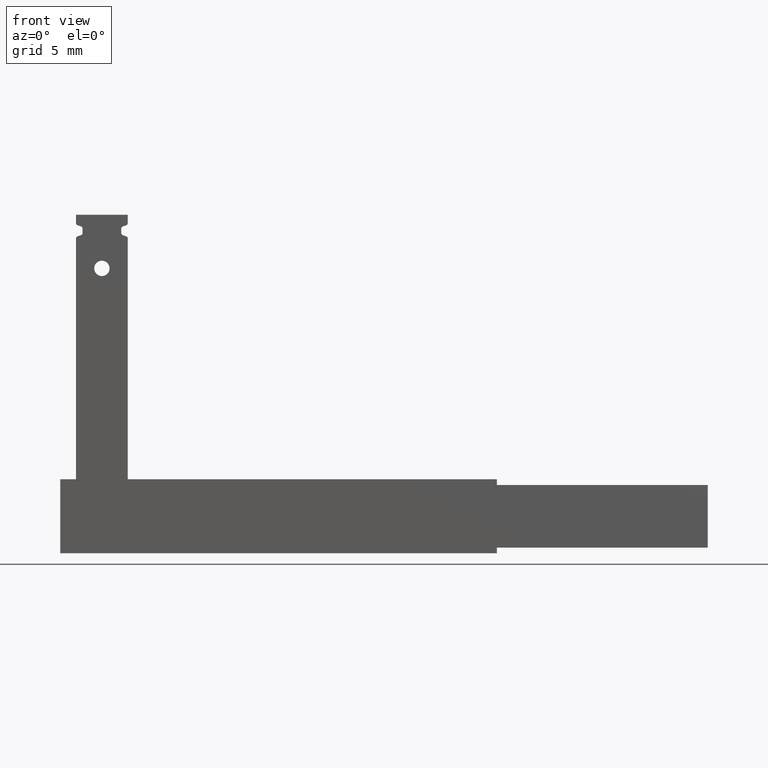
[diagram: clean part render]
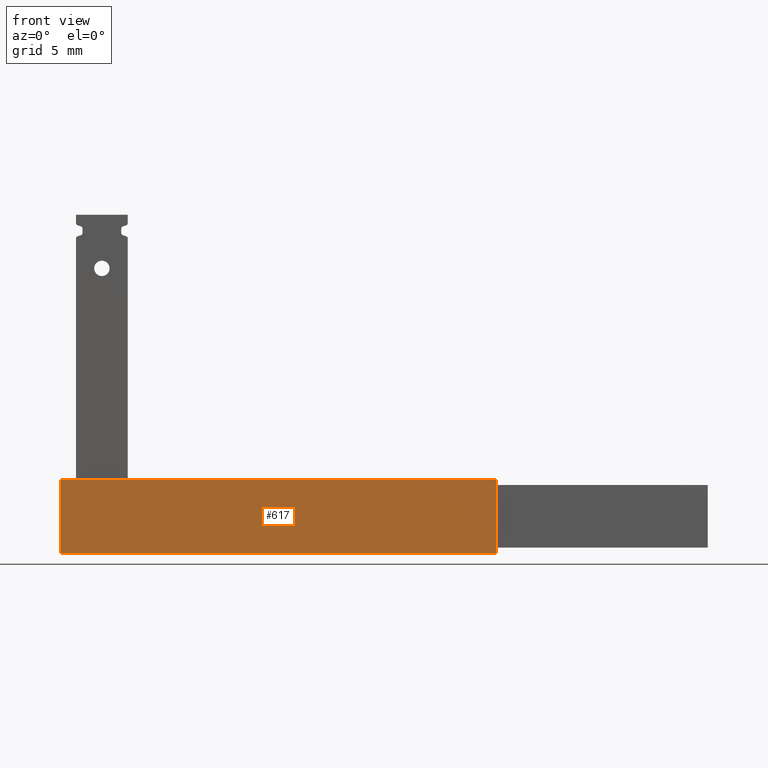
[diagram: same view with one face highlighted and labeled with its STEP entity id]
A machine part, front view. The second image highlights one B-rep face of the part: STEP entity #617.
In plain terms, the highlighted planar face has unit normal (0, -1, 0).
Its self-contained STEP definition (entity closure, byte-faithful):
#158 = VERTEX_POINT ( 'NONE', #1086 ) ;
#277 = CARTESIAN_POINT ( 'NONE',  ( 23.60000000000000900, 0.0000000000000000000, 0.0000000000000000000 ) ) ;
#394 = DIRECTION ( 'NONE',  ( 0.0000000000000000000, -1.000000000000000000, 0.0000000000000000000 ) ) ;
#489 = CARTESIAN_POINT ( 'NONE',  ( 0.0000000000000000000, 0.0000000000000000000, 0.0000000000000000000 ) ) ;
#511 = VERTEX_POINT ( 'NONE', #683 ) ;
#614 = LINE ( 'NONE', #277, #1722 ) ;
#617 = ADVANCED_FACE ( 'NONE', ( #1950 ), #851, .T. ) ;
#637 = VERTEX_POINT ( 'NONE', #843 ) ;
#683 = CARTESIAN_POINT ( 'NONE',  ( 23.60000000000000100, 0.0000000000000000000, -4.000000000000000000 ) ) ;
#800 = EDGE_CURVE ( 'NONE', #158, #637, #3019, .T. ) ;
#834 = DIRECTION ( 'NONE',  ( 1.000000000000000000, 0.0000000000000000000, 0.0000000000000000000 ) ) ;
#843 = CARTESIAN_POINT ( 'NONE',  ( 23.60000000000000900, 0.0000000000000000000, 0.0000000000000000000 ) ) ;
#851 = PLANE ( 'NONE',  #1742 ) ;
#864 = LINE ( 'NONE', #966, #2709 ) ;
#966 = CARTESIAN_POINT ( 'NONE',  ( 0.0000000000000000000, 0.0000000000000000000, -4.000000000000000000 ) ) ;
#969 = EDGE_CURVE ( 'NONE', #637, #511, #614, .T. ) ;
#1086 = CARTESIAN_POINT ( 'NONE',  ( 0.0000000000000000000, 0.0000000000000000000, 0.0000000000000000000 ) ) ;
#1403 = DIRECTION ( 'NONE',  ( -1.000000000000000000, -0.0000000000000000000, -0.0000000000000000000 ) ) ;
#1543 = EDGE_LOOP ( 'NONE', ( #2734, #2326, #1620, #2726 ) ) ;
#1620 = ORIENTED_EDGE ( 'NONE', *, *, #969, .F. ) ;
#1722 = VECTOR ( 'NONE', #1932, 1000.000000000000000 ) ;
#1740 = CARTESIAN_POINT ( 'NONE',  ( 0.0000000000000000000, 0.0000000000000000000, 0.0000000000000000000 ) ) ;
#1742 = AXIS2_PLACEMENT_3D ( 'NONE', #1809, #394, #2105 ) ;
#1809 = CARTESIAN_POINT ( 'NONE',  ( 0.0000000000000000000, 0.0000000000000000000, 0.0000000000000000000 ) ) ;
#1868 = VECTOR ( 'NONE', #1901, 1000.000000000000000 ) ;
#1901 = DIRECTION ( 'NONE',  ( -0.0000000000000000000, -0.0000000000000000000, 1.000000000000000000 ) ) ;
#1917 = EDGE_CURVE ( 'NONE', #2465, #158, #2876, .T. ) ;
#1932 = DIRECTION ( 'NONE',  ( -1.734723475976807100E-015, 0.0000000000000000000, -1.000000000000000000 ) ) ;
#1950 = FACE_OUTER_BOUND ( 'NONE', #1543, .T. ) ;
#2017 = CARTESIAN_POINT ( 'NONE',  ( 0.0000000000000000000, 0.0000000000000000000, -4.000000000000000000 ) ) ;
#2103 = EDGE_CURVE ( 'NONE', #511, #2465, #864, .T. ) ;
#2105 = DIRECTION ( 'NONE',  ( 0.0000000000000000000, -0.0000000000000000000, -1.000000000000000000 ) ) ;
#2326 = ORIENTED_EDGE ( 'NONE', *, *, #2103, .F. ) ;
#2465 = VERTEX_POINT ( 'NONE', #2017 ) ;
#2564 = VECTOR ( 'NONE', #834, 1000.000000000000000 ) ;
#2709 = VECTOR ( 'NONE', #1403, 1000.000000000000000 ) ;
#2726 = ORIENTED_EDGE ( 'NONE', *, *, #800, .F. ) ;
#2734 = ORIENTED_EDGE ( 'NONE', *, *, #1917, .F. ) ;
#2876 = LINE ( 'NONE', #489, #1868 ) ;
#3019 = LINE ( 'NONE', #1740, #2564 ) ;